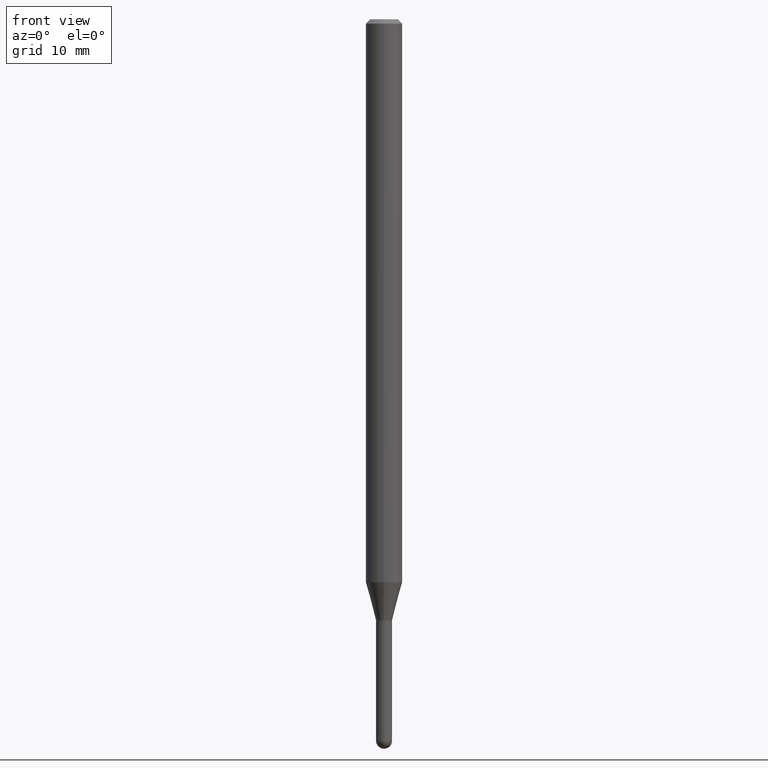
[diagram: clean part render]
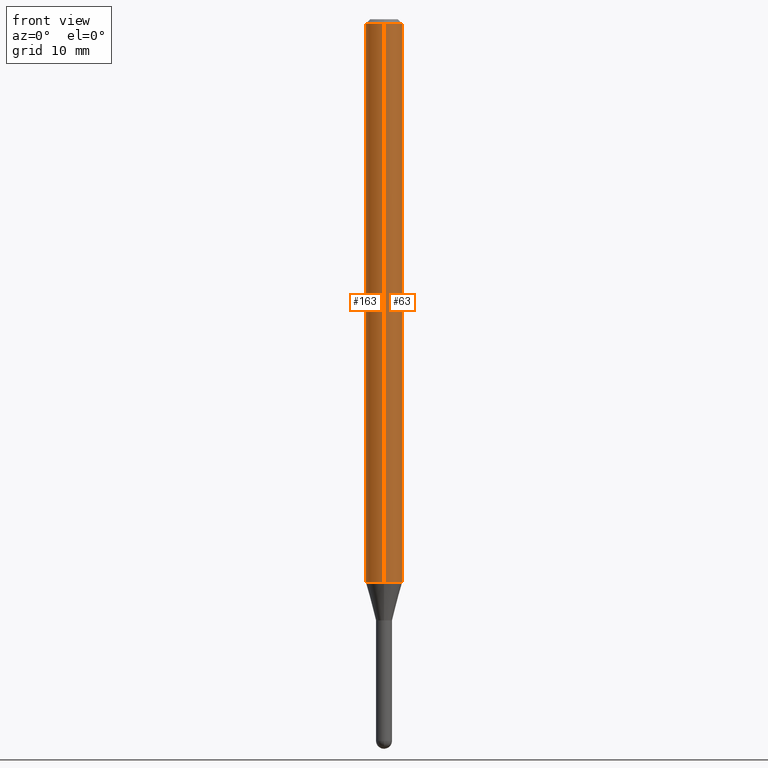
[diagram: same view with one multi-face feature highlighted, each face labeled with its STEP entity id]
A machine part, front view. The highlighted faces form ONE feature: a constant-radius fillet chain: 2 tangent blend faces with common blend radius 1.5875 mm. The faces share edges in the B-rep.
Their STEP definitions:
[1] entity #63 (Cylinder):
#24 = CYLINDRICAL_SURFACE ( 'NONE', #416, 0.06250000000000000000 ) ;
#32 = EDGE_CURVE ( 'NONE', #388, #483, #451, .T. ) ;
#33 = CARTESIAN_POINT ( 'NONE',  ( 0.000000000000000000, 0.000000000000000000, 0.000000000000000000 ) ) ;
#47 = CIRCLE ( 'NONE', #501, 0.06250000000000000000 ) ;
#56 = CARTESIAN_POINT ( 'NONE',  ( 3.668186011998700145E-31, -5.237246635747108241E-17, -0.01500000000000006710 ) ) ;
#62 = CARTESIAN_POINT ( 'NONE',  ( -4.364351673553912750E-16, -0.06250000000000005551, -0.01499999999999984852 ) ) ;
#63 = ADVANCED_FACE ( 'NONE', ( #413 ), #24, .T. ) ;
#69 = DIRECTION ( 'NONE',  ( -2.445457341332456277E-29, 3.491497757164723116E-15, 1.000000000000000000 ) ) ;
#84 = CARTESIAN_POINT ( 'NONE',  ( 4.718212136549045981E-29, -6.736419733910545190E-15, -1.929378221735094545 ) ) ;
#103 = CARTESIAN_POINT ( 'NONE',  ( 4.440892098500625669E-16, 0.06250000000000000000, -2.182186098227951947E-16 ) ) ;
#201 = EDGE_LOOP ( 'NONE', ( #402, #239, #395, #368 ) ) ;
#222 = LINE ( 'NONE', #406, #270 ) ;
#238 = EDGE_CURVE ( 'NONE', #241, #388, #47, .T. ) ;
#239 = ORIENTED_EDGE ( 'NONE', *, *, #32, .T. ) ;
#241 = VERTEX_POINT ( 'NONE', #320 ) ;
#246 = DIRECTION ( 'NONE',  ( -6.982962677686265922E-15, -1.000000000000000000, 4.370956789862821150E-15 ) ) ;
#257 = CARTESIAN_POINT ( 'NONE',  ( 4.440892098501095534E-16, 0.06249999999999324846, -1.929378221735094767 ) ) ;
#262 = AXIS2_PLACEMENT_3D ( 'NONE', #56, #293, #364 ) ;
#270 = VECTOR ( 'NONE', #342, 39.37007874015748143 ) ;
#293 = DIRECTION ( 'NONE',  ( -2.445457341332455997E-29, 3.491497757164723116E-15, 1.000000000000000000 ) ) ;
#320 = CARTESIAN_POINT ( 'NONE',  ( -4.364351673553446829E-16, -0.06250000000000677236, -1.929378221735094323 ) ) ;
#329 = VECTOR ( 'NONE', #69, 39.37007874015748143 ) ;
#342 = DIRECTION ( 'NONE',  ( -2.445457341332456277E-29, 3.491497757164723116E-15, 1.000000000000000000 ) ) ;
#355 = DIRECTION ( 'NONE',  ( -2.445457341332455997E-29, 3.491497757164723116E-15, 1.000000000000000000 ) ) ;
#357 = EDGE_CURVE ( 'NONE', #404, #483, #482, .T. ) ;
#364 = DIRECTION ( 'NONE',  ( -6.982962677686265922E-15, -1.000000000000000000, 3.483106191921935554E-15 ) ) ;
#368 = ORIENTED_EDGE ( 'NONE', *, *, #487, .F. ) ;
#388 = VERTEX_POINT ( 'NONE', #257 ) ;
#395 = ORIENTED_EDGE ( 'NONE', *, *, #357, .F. ) ;
#402 = ORIENTED_EDGE ( 'NONE', *, *, #238, .T. ) ;
#404 = VERTEX_POINT ( 'NONE', #62 ) ;
#406 = CARTESIAN_POINT ( 'NONE',  ( -4.364351673553916201E-16, -0.06250000000000000000, 2.182186098227951947E-16 ) ) ;
#413 = FACE_OUTER_BOUND ( 'NONE', #201, .T. ) ;
#416 = AXIS2_PLACEMENT_3D ( 'NONE', #33, #453, #420 ) ;
#420 = DIRECTION ( 'NONE',  ( -6.982962677686265922E-15, -1.000000000000000000, 3.491497757164723116E-15 ) ) ;
#451 = LINE ( 'NONE', #103, #329 ) ;
#453 = DIRECTION ( 'NONE',  ( -2.445457341332455997E-29, 3.491497757164723116E-15, 1.000000000000000000 ) ) ;
#482 = CIRCLE ( 'NONE', #262, 0.06250000000000000000 ) ;
#483 = VERTEX_POINT ( 'NONE', #494 ) ;
#487 = EDGE_CURVE ( 'NONE', #241, #404, #222, .T. ) ;
#494 = CARTESIAN_POINT ( 'NONE',  ( 4.440892098501101450E-16, 0.06249999999999995143, -0.01500000000000028394 ) ) ;
#501 = AXIS2_PLACEMENT_3D ( 'NONE', #84, #355, #246 ) ;
[2] entity #163 (Cylinder):
#29 = FACE_OUTER_BOUND ( 'NONE', #436, .T. ) ;
#32 = EDGE_CURVE ( 'NONE', #388, #483, #451, .T. ) ;
#43 = ORIENTED_EDGE ( 'NONE', *, *, #487, .T. ) ;
#62 = CARTESIAN_POINT ( 'NONE',  ( -4.364351673553912750E-16, -0.06250000000000005551, -0.01499999999999984852 ) ) ;
#69 = DIRECTION ( 'NONE',  ( -2.445457341332456277E-29, 3.491497757164723116E-15, 1.000000000000000000 ) ) ;
#71 = DIRECTION ( 'NONE',  ( -6.982962677686265922E-15, -1.000000000000000000, 3.483106191921935554E-15 ) ) ;
#94 = ORIENTED_EDGE ( 'NONE', *, *, #32, .F. ) ;
#103 = CARTESIAN_POINT ( 'NONE',  ( 4.440892098500625669E-16, 0.06250000000000000000, -2.182186098227951947E-16 ) ) ;
#112 = DIRECTION ( 'NONE',  ( -2.445457341332455997E-29, 3.491497757164723116E-15, 1.000000000000000000 ) ) ;
#125 = ORIENTED_EDGE ( 'NONE', *, *, #145, .F. ) ;
#137 = DIRECTION ( 'NONE',  ( -2.445457341332455997E-29, 3.491497757164723116E-15, 1.000000000000000000 ) ) ;
#138 = CARTESIAN_POINT ( 'NONE',  ( 0.000000000000000000, 0.000000000000000000, 0.000000000000000000 ) ) ;
#140 = DIRECTION ( 'NONE',  ( -6.982962677686265922E-15, -1.000000000000000000, 4.370956789862821150E-15 ) ) ;
#145 = EDGE_CURVE ( 'NONE', #483, #404, #470, .T. ) ;
#163 = ADVANCED_FACE ( 'NONE', ( #29 ), #337, .T. ) ;
#171 = CIRCLE ( 'NONE', #229, 0.06250000000000000000 ) ;
#197 = AXIS2_PLACEMENT_3D ( 'NONE', #138, #112, #434 ) ;
#222 = LINE ( 'NONE', #406, #270 ) ;
#229 = AXIS2_PLACEMENT_3D ( 'NONE', #497, #137, #140 ) ;
#241 = VERTEX_POINT ( 'NONE', #320 ) ;
#257 = CARTESIAN_POINT ( 'NONE',  ( 4.440892098501095534E-16, 0.06249999999999324846, -1.929378221735094767 ) ) ;
#270 = VECTOR ( 'NONE', #342, 39.37007874015748143 ) ;
#283 = ORIENTED_EDGE ( 'NONE', *, *, #363, .T. ) ;
#320 = CARTESIAN_POINT ( 'NONE',  ( -4.364351673553446829E-16, -0.06250000000000677236, -1.929378221735094323 ) ) ;
#329 = VECTOR ( 'NONE', #69, 39.37007874015748143 ) ;
#337 = CYLINDRICAL_SURFACE ( 'NONE', #197, 0.06250000000000000000 ) ;
#342 = DIRECTION ( 'NONE',  ( -2.445457341332456277E-29, 3.491497757164723116E-15, 1.000000000000000000 ) ) ;
#363 = EDGE_CURVE ( 'NONE', #388, #241, #171, .T. ) ;
#375 = CARTESIAN_POINT ( 'NONE',  ( 3.668186011998700145E-31, -5.237246635747108241E-17, -0.01500000000000006710 ) ) ;
#388 = VERTEX_POINT ( 'NONE', #257 ) ;
#404 = VERTEX_POINT ( 'NONE', #62 ) ;
#406 = CARTESIAN_POINT ( 'NONE',  ( -4.364351673553916201E-16, -0.06250000000000000000, 2.182186098227951947E-16 ) ) ;
#434 = DIRECTION ( 'NONE',  ( -6.982962677686265922E-15, -1.000000000000000000, 3.491497757164723116E-15 ) ) ;
#436 = EDGE_LOOP ( 'NONE', ( #94, #283, #43, #125 ) ) ;
#451 = LINE ( 'NONE', #103, #329 ) ;
#457 = DIRECTION ( 'NONE',  ( -2.445457341332455997E-29, 3.491497757164723116E-15, 1.000000000000000000 ) ) ;
#464 = AXIS2_PLACEMENT_3D ( 'NONE', #375, #457, #71 ) ;
#470 = CIRCLE ( 'NONE', #464, 0.06250000000000000000 ) ;
#483 = VERTEX_POINT ( 'NONE', #494 ) ;
#487 = EDGE_CURVE ( 'NONE', #241, #404, #222, .T. ) ;
#494 = CARTESIAN_POINT ( 'NONE',  ( 4.440892098501101450E-16, 0.06249999999999995143, -0.01500000000000028394 ) ) ;
#497 = CARTESIAN_POINT ( 'NONE',  ( 4.718212136549045981E-29, -6.736419733910545190E-15, -1.929378221735094545 ) ) ;